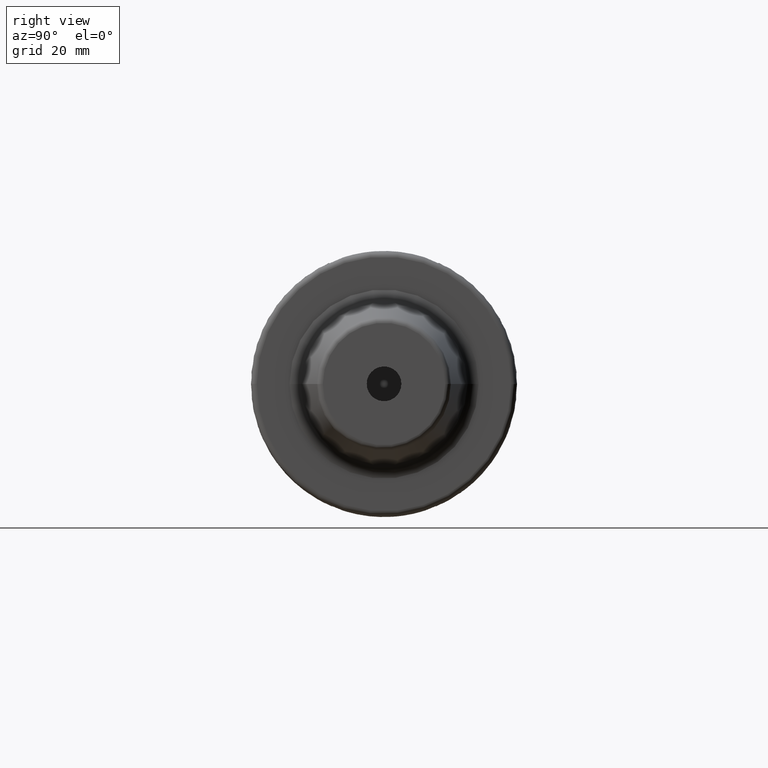
[diagram: clean part render]
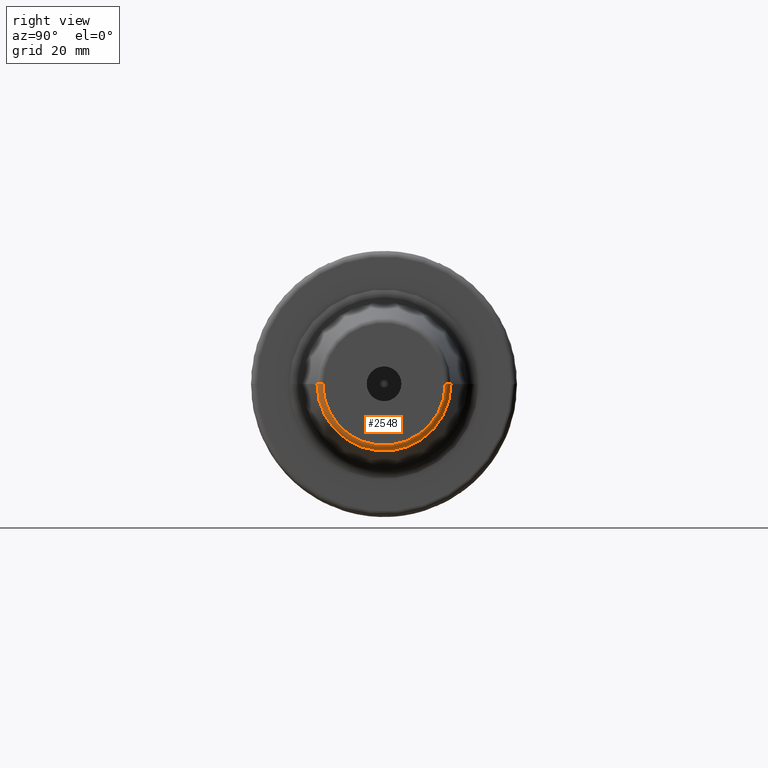
[diagram: same view with one face highlighted and labeled with its STEP entity id]
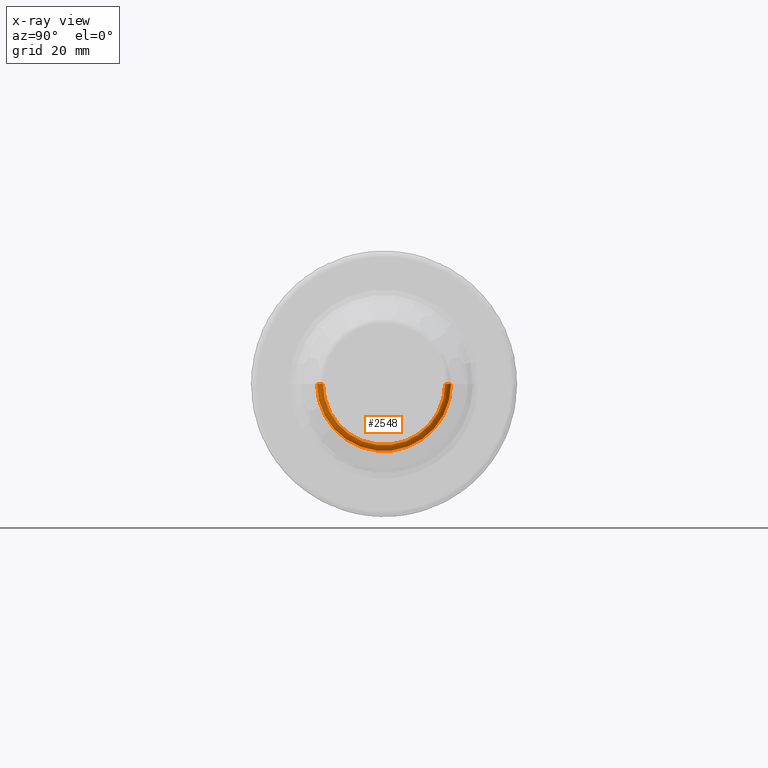
[diagram: x-ray of the same camera — body ghosted, the highlighted face saturated]
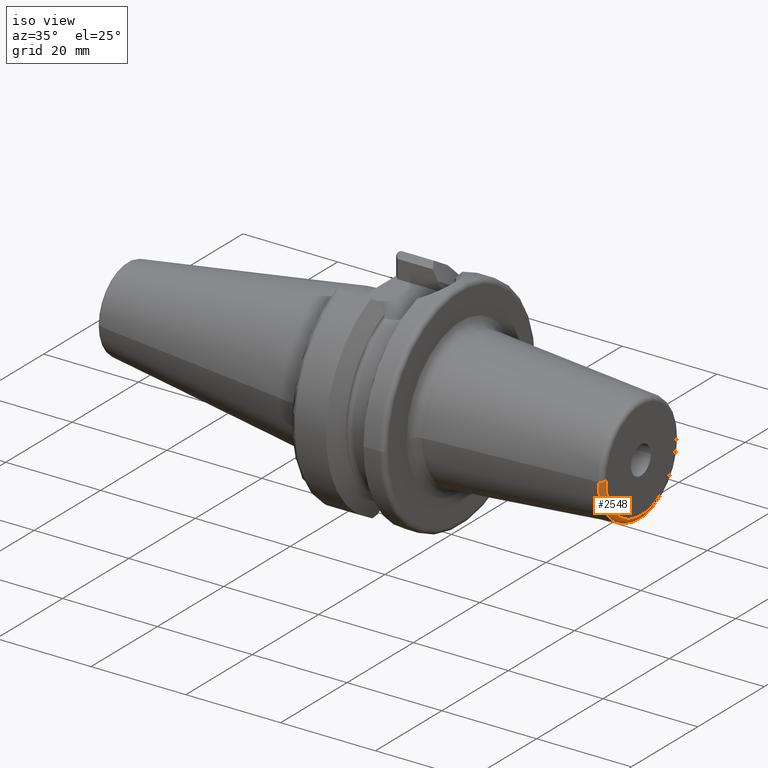
[diagram: same view with one face highlighted and labeled with its STEP entity id]
A machine part, right view. The second image highlights one B-rep face of the part: STEP entity #2548.
The next image is the same camera in x-ray: the body ghosted, the highlighted face saturated — about 0% of this face is hidden behind the body in this view.
A second angle (iso view) of the same face is appended — the face is thin or edge-on in the first view.
In plain terms, the highlighted toroidal blend (fillet) surface has major radius 10.5756 mm and minor (blend) radius 1 mm.
Its self-contained STEP definition (entity closure, byte-faithful):
#852=CARTESIAN_POINT('',(5.9E1,-1.057560950834E1,-1.955066664117E-11));
#853=DIRECTION('',(0.E0,-1.848656644432E-12,1.E0));
#854=DIRECTION('',(7.845909572801E-2,-9.969173337331E-1,-1.842957852955E-12));
#855=AXIS2_PLACEMENT_3D('',#852,#853,#854);
#857=CARTESIAN_POINT('',(5.9E1,1.057560950834E1,1.954350570266E-11));
#858=DIRECTION('',(0.E0,1.847980102276E-12,-1.E0));
#859=DIRECTION('',(7.845909572801E-2,9.969173337331E-1,1.842283396353E-12));
#860=AXIS2_PLACEMENT_3D('',#857,#858,#859);
#862=CARTESIAN_POINT('',(5.907845909573E1,0.E0,0.E0));
#863=DIRECTION('',(-1.E0,0.E0,0.E0));
#864=DIRECTION('',(0.E0,1.E0,0.E0));
#865=AXIS2_PLACEMENT_3D('',#862,#863,#864);
#890=CARTESIAN_POINT('',(6.E1,0.E0,0.E0));
#891=DIRECTION('',(-1.E0,0.E0,0.E0));
#892=DIRECTION('',(0.E0,1.E0,0.E0));
#893=AXIS2_PLACEMENT_3D('',#890,#891,#892);
#1365=CARTESIAN_POINT('',(5.907845909573E1,1.157252684207E1,0.E0));
#1366=CARTESIAN_POINT('',(5.907845909573E1,-1.157252684207E1,0.E0));
#1367=VERTEX_POINT('',#1365);
#1368=VERTEX_POINT('',#1366);
#1369=CARTESIAN_POINT('',(6.E1,1.057560950834E1,0.E0));
#1370=CARTESIAN_POINT('',(6.E1,-1.057560950834E1,0.E0));
#1371=VERTEX_POINT('',#1369);
#1372=VERTEX_POINT('',#1370);
#2535=CARTESIAN_POINT('',(5.9E1,0.E0,0.E0));
#2536=DIRECTION('',(1.E0,0.E0,0.E0));
#2537=DIRECTION('',(0.E0,9.999352790416E-1,1.137707027340E-2));
#2538=AXIS2_PLACEMENT_3D('',#2535,#2536,#2537);
#2539=TOROIDAL_SURFACE('',#2538,1.057560950834E1,1.E0);
#2541=ORIENTED_EDGE('',*,*,#2540,.T.);
#2542=ORIENTED_EDGE('',*,*,#2530,.T.);
#2544=ORIENTED_EDGE('',*,*,#2543,.F.);
#2545=ORIENTED_EDGE('',*,*,#2526,.F.);
#2546=EDGE_LOOP('',(#2541,#2542,#2544,#2545));
#2547=FACE_OUTER_BOUND('',#2546,.F.);
#2548=ADVANCED_FACE('',(#2547),#2539,.T.);
#856=CIRCLE('',#855,1.E0);
#861=CIRCLE('',#860,1.E0);
#866=CIRCLE('',#865,1.157252684207E1);
#894=CIRCLE('',#893,1.057560950834E1);
#2526=EDGE_CURVE('',#1367,#1371,#861,.T.);
#2530=EDGE_CURVE('',#1368,#1372,#856,.T.);
#2540=EDGE_CURVE('',#1367,#1368,#866,.T.);
#2543=EDGE_CURVE('',#1371,#1372,#894,.T.);